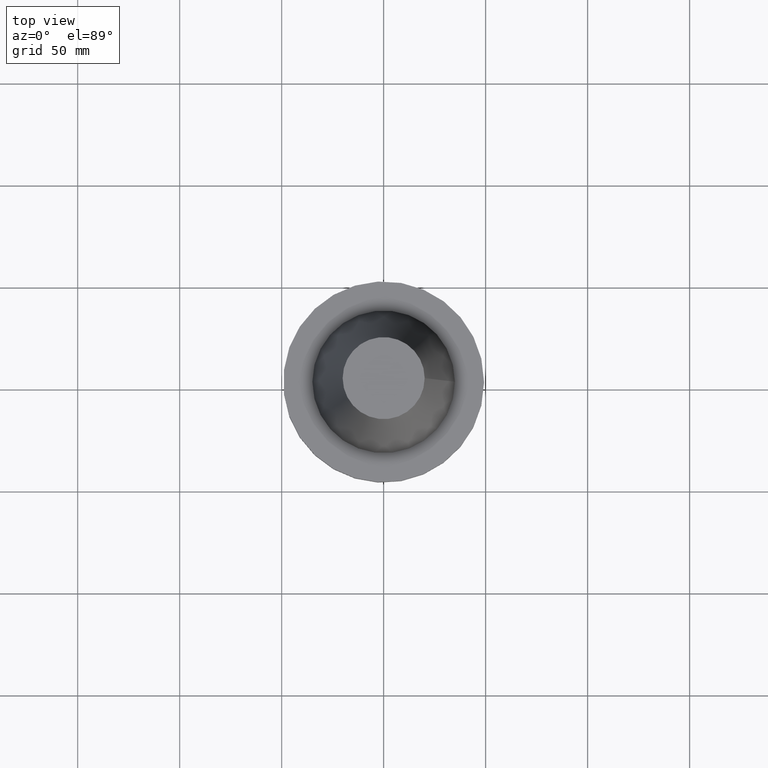
[diagram: clean part render]
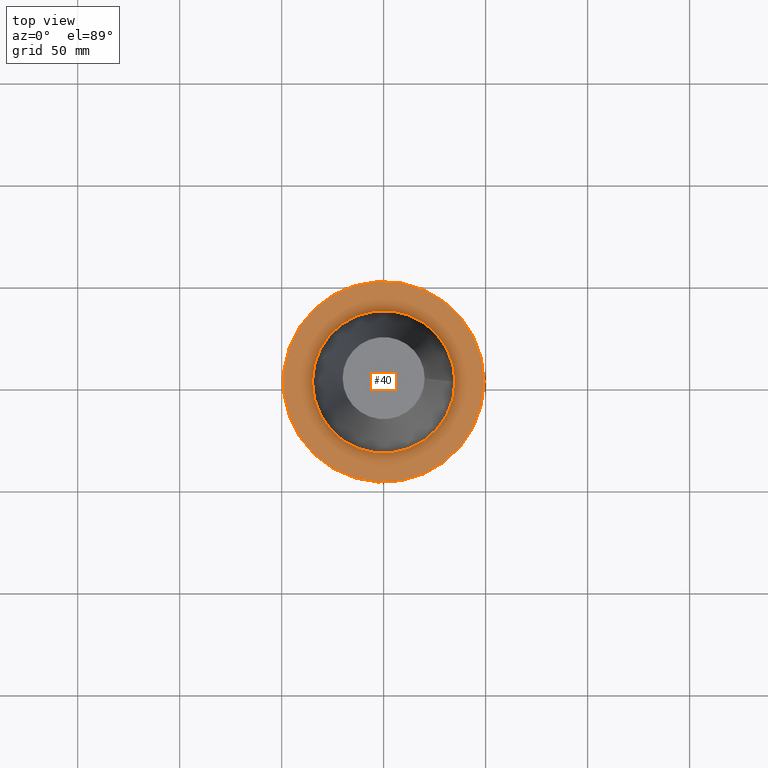
[diagram: same view with one face highlighted and labeled with its STEP entity id]
A machine part, top view. The second image highlights one B-rep face of the part: STEP entity #40.
In plain terms, the highlighted planar face has unit normal (0, 0, -1).
Its self-contained STEP definition (entity closure, byte-faithful):
#12 = VERTEX_POINT ( 'NONE', #37 ) ;
#37 = CARTESIAN_POINT ( 'NONE',  ( 34.92499999999999005, 0.000000000000000000, -1.499999999999987566 ) ) ;
#40 = ADVANCED_FACE ( 'NONE', ( #176, #290 ), #45, .F. ) ;
#41 = ORIENTED_EDGE ( 'NONE', *, *, #195, .F. ) ;
#45 = PLANE ( 'NONE',  #79 ) ;
#58 = CIRCLE ( 'NONE', #226, 34.92499999999999005 ) ;
#65 = EDGE_LOOP ( 'NONE', ( #217 ) ) ;
#79 = AXIS2_PLACEMENT_3D ( 'NONE', #301, #163, #263 ) ;
#85 = VERTEX_POINT ( 'NONE', #387 ) ;
#114 = CIRCLE ( 'NONE', #304, 49.21499999999999631 ) ;
#125 = DIRECTION ( 'NONE',  ( 1.000000000000000000, 0.000000000000000000, 0.000000000000000000 ) ) ;
#163 = DIRECTION ( 'NONE',  ( 0.000000000000000000, 0.000000000000000000, -1.000000000000000000 ) ) ;
#176 = FACE_BOUND ( 'NONE', #354, .T. ) ;
#195 = EDGE_CURVE ( 'NONE', #12, #12, #58, .T. ) ;
#217 = ORIENTED_EDGE ( 'NONE', *, *, #394, .T. ) ;
#222 = DIRECTION ( 'NONE',  ( -0.000000000000000000, -0.000000000000000000, 1.000000000000000000 ) ) ;
#226 = AXIS2_PLACEMENT_3D ( 'NONE', #236, #242, #125 ) ;
#236 = CARTESIAN_POINT ( 'NONE',  ( 0.000000000000000000, 0.000000000000000000, -1.499999999999987566 ) ) ;
#242 = DIRECTION ( 'NONE',  ( -0.000000000000000000, -0.000000000000000000, 1.000000000000000000 ) ) ;
#253 = DIRECTION ( 'NONE',  ( 1.000000000000000000, 0.000000000000000000, 0.000000000000000000 ) ) ;
#263 = DIRECTION ( 'NONE',  ( -1.000000000000000000, 0.000000000000000000, -0.000000000000000000 ) ) ;
#290 = FACE_OUTER_BOUND ( 'NONE', #65, .T. ) ;
#301 = CARTESIAN_POINT ( 'NONE',  ( 0.000000000000000000, 49.21499999999999631, -1.499999999999992895 ) ) ;
#304 = AXIS2_PLACEMENT_3D ( 'NONE', #377, #222, #253 ) ;
#354 = EDGE_LOOP ( 'NONE', ( #41 ) ) ;
#377 = CARTESIAN_POINT ( 'NONE',  ( 0.000000000000000000, 0.000000000000000000, -1.499999999999987566 ) ) ;
#387 = CARTESIAN_POINT ( 'NONE',  ( 49.21499999999999631, 0.000000000000000000, -1.499999999999987566 ) ) ;
#394 = EDGE_CURVE ( 'NONE', #85, #85, #114, .T. ) ;